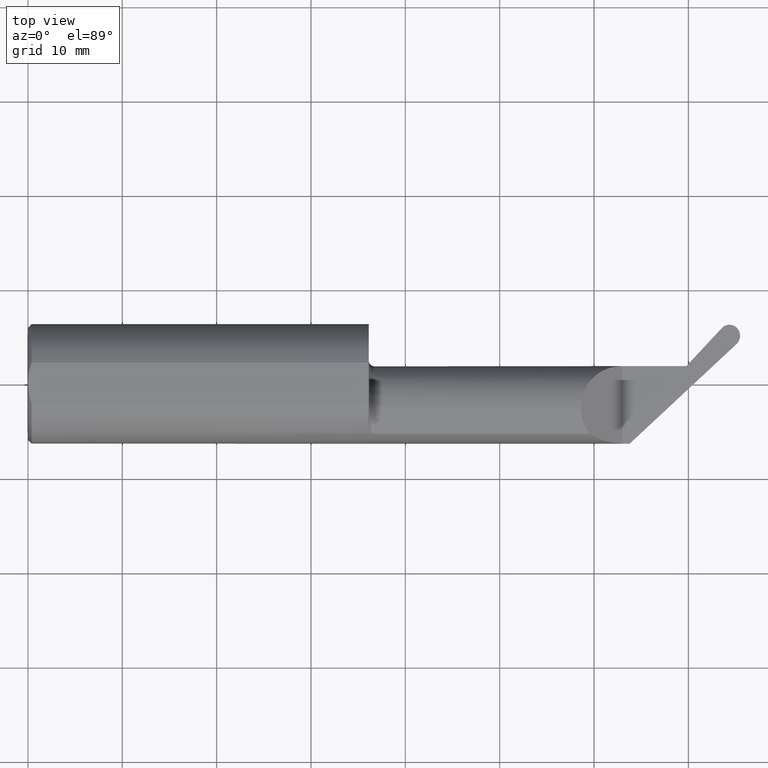
[diagram: clean part render]
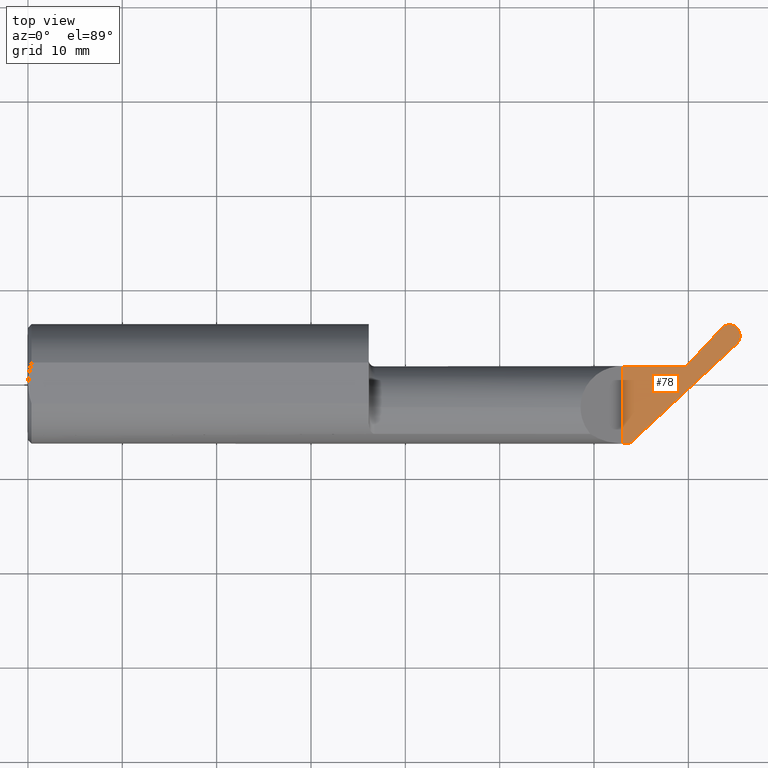
[diagram: same view with one face highlighted and labeled with its STEP entity id]
A machine part, top view. The second image highlights one B-rep face of the part: STEP entity #78.
In plain terms, the highlighted planar face has unit normal (-0, 0, -1).
Its self-contained STEP definition (entity closure, byte-faithful):
#10 = CARTESIAN_POINT ( 'NONE',  ( 2.899611671649573008, 0.2375721085925628639, -5.549066237130534971E-17 ) ) ;
#39 = LINE ( 'NONE', #489, #442 ) ;
#47 = ORIENTED_EDGE ( 'NONE', *, *, #258, .F. ) ;
#56 = FACE_OUTER_BOUND ( 'NONE', #250, .T. ) ;
#71 = CARTESIAN_POINT ( 'NONE',  ( 2.934129113859850868, 0.2470809850564593402, -5.549066237130533738E-17 ) ) ;
#73 = DIRECTION ( 'NONE',  ( -1.000000000000000000, 0.000000000000000000, 0.000000000000000000 ) ) ;
#78 = ADVANCED_FACE ( 'NONE', ( #56 ), #584, .F. ) ;
#121 = CARTESIAN_POINT ( 'NONE',  ( 2.970764410099917097, 0.2139681964820433213, -5.549066237130534971E-17 ) ) ;
#140 = ORIENTED_EDGE ( 'NONE', *, *, #492, .F. ) ;
#153 = ORIENTED_EDGE ( 'NONE', *, *, #377, .F. ) ;
#171 = CARTESIAN_POINT ( 'NONE',  ( 2.480000000000000426, 0.07414999999999932756, -5.549066237130534971E-17 ) ) ;
#179 = CARTESIAN_POINT ( 'NONE',  ( 2.921874253656272735, 0.2469210718379099834, -5.549066237130535587E-17 ) ) ;
#191 = EDGE_CURVE ( 'NONE', #414, #477, #533, .T. ) ;
#196 = CARTESIAN_POINT ( 'NONE',  ( 2.895332127941879552, 0.2329916902143778779, -5.549066237130534971E-17 ) ) ;
#204 = LINE ( 'NONE', #342, #689 ) ;
#221 = ORIENTED_EDGE ( 'NONE', *, *, #782, .T. ) ;
#243 = LINE ( 'NONE', #416, #811 ) ;
#250 = EDGE_LOOP ( 'NONE', ( #422, #221, #47, #153, #140, #501 ) ) ;
#258 = EDGE_CURVE ( 'NONE', #718, #429, #709, .T. ) ;
#285 = CARTESIAN_POINT ( 'NONE',  ( 2.895332127941879552, 0.2329916902143778779, -5.549066237130534971E-17 ) ) ;
#306 = CARTESIAN_POINT ( 'NONE',  ( 2.971947113069847823, 0.2049067688292483813, -5.549066237130536203E-17 ) ) ;
#321 = VECTOR ( 'NONE', #526, 39.37007874015748854 ) ;
#332 = DIRECTION ( 'NONE',  ( -0.000000000000000000, 0.000000000000000000, -1.000000000000000000 ) ) ;
#342 = CARTESIAN_POINT ( 'NONE',  ( 1.421999999999999931, 0.07414999999999931368, -5.549066237130534971E-17 ) ) ;
#352 = CARTESIAN_POINT ( 'NONE',  ( 2.480000000000000426, -0.2498499999999999888, -5.549066237130534971E-17 ) ) ;
#357 = DIRECTION ( 'NONE',  ( -1.000000000000000000, -0.000000000000000000, -0.000000000000000000 ) ) ;
#377 = EDGE_CURVE ( 'NONE', #585, #718, #204, .T. ) ;
#381 = CARTESIAN_POINT ( 'NONE',  ( 2.924897144155708784, 0.2472028725233045565, -5.549066237130534971E-17 ) ) ;
#389 = CARTESIAN_POINT ( 'NONE',  ( 2.963997349929906822, 0.2272759018756382587, -5.549066237130534971E-17 ) ) ;
#414 = VERTEX_POINT ( 'NONE', #725 ) ;
#416 = CARTESIAN_POINT ( 'NONE',  ( 2.480000000000000426, 0.2500000000000000000, -5.549066237130534971E-17 ) ) ;
#419 = CARTESIAN_POINT ( 'NONE',  ( 2.510656778664930311, -0.2498500000000000998, 9.070589041463373428E-17 ) ) ;
#422 = ORIENTED_EDGE ( 'NONE', *, *, #191, .F. ) ;
#429 = VERTEX_POINT ( 'NONE', #285 ) ;
#442 = VECTOR ( 'NONE', #357, 39.37007874015748143 ) ;
#449 = CARTESIAN_POINT ( 'NONE',  ( 2.965952434464781629, 0.1747368823655955639, -5.549066237130535587E-17 ) ) ;
#450 = VECTOR ( 'NONE', #771, 39.37007874015748143 ) ;
#457 = CARTESIAN_POINT ( 'NONE',  ( 2.480000000000000426, 0.2500000000000000000, -5.549066237130534971E-17 ) ) ;
#477 = VERTEX_POINT ( 'NONE', #419 ) ;
#489 = CARTESIAN_POINT ( 'NONE',  ( 3.000000000000000444, -0.2498499999999999333, -5.549066237130534971E-17 ) ) ;
#492 = EDGE_CURVE ( 'NONE', #601, #585, #243, .T. ) ;
#494 = DIRECTION ( 'NONE',  ( -0.000000000000000000, 1.000000000000000000, -0.000000000000000000 ) ) ;
#501 = ORIENTED_EDGE ( 'NONE', *, *, #548, .F. ) ;
#507 = CARTESIAN_POINT ( 'NONE',  ( 2.584952230521407213, -0.09985000000000000819, -5.549066237130534971E-17 ) ) ;
#508 = CARTESIAN_POINT ( 'NONE',  ( 2.970927185913147639, 0.1855170847982023086, -5.549066237130535587E-17 ) ) ;
#516 = CARTESIAN_POINT ( 'NONE',  ( 2.940049984817878048, 0.2457218832932256680, -5.549066237130534971E-17 ) ) ;
#526 = DIRECTION ( 'NONE',  ( -0.7313537016191662410, -0.6819983600625029174, 0.000000000000000000 ) ) ;
#531 = DIRECTION ( 'NONE',  ( 1.000000000000000000, 0.000000000000000000, 0.000000000000000000 ) ) ;
#533 = LINE ( 'NONE', #798, #321 ) ;
#548 = EDGE_CURVE ( 'NONE', #477, #601, #39, .T. ) ;
#562 = CARTESIAN_POINT ( 'NONE',  ( 2.912967813239470516, 0.2447617076851329176, -5.549066237130535587E-17 ) ) ;
#584 = PLANE ( 'NONE',  #708 ) ;
#585 = VERTEX_POINT ( 'NONE', #171 ) ;
#601 = VERTEX_POINT ( 'NONE', #352 ) ;
#628 = CARTESIAN_POINT ( 'NONE',  ( 2.951246278422101632, 0.2404503415977030933, -5.549066237130534971E-17 ) ) ;
#646 = CARTESIAN_POINT ( 'NONE',  ( 2.962147998355217915, 0.2298195036112594403, -5.549066237130536203E-17 ) ) ;
#650 = CARTESIAN_POINT ( 'NONE',  ( 2.956020981123887559, 0.2368277747149807322, -5.549066237130535587E-17 ) ) ;
#689 = VECTOR ( 'NONE', #531, 39.37007874015748143 ) ;
#708 = AXIS2_PLACEMENT_3D ( 'NONE', #457, #332, #73 ) ;
#709 = LINE ( 'NONE', #507, #450 ) ;
#718 = VERTEX_POINT ( 'NONE', #748 ) ;
#720 = CARTESIAN_POINT ( 'NONE',  ( 2.967042707307567806, 0.2220795025907459364, -5.549066237130536820E-17 ) ) ;
#723 = B_SPLINE_CURVE_WITH_KNOTS ( 'NONE', 3,
 ( #772, #449, #508, #306, #121, #720, #389, #646, #650, #628, #516, #71, #381, #179, #769, #562, #823, #10, #196 ),
 .UNSPECIFIED., .F., .F.,
 ( 4, 2, 1, 2, 2, 2, 2, 2, 2, 4 ),
 ( 0.000000000000000000, 0.2500000000000055511, 0.3750000000000080491, 0.4375000000000092704, 0.5000000000000105471, 0.6250000000000053291, 0.7500000000000001110, 0.8124999999999974465, 0.8749999999999948930, 1.000000000000000000 ),
 .UNSPECIFIED. ) ;
#725 = CARTESIAN_POINT ( 'NONE',  ( 2.956681397116279975, 0.1660746854946830720, 0.000000000000000000 ) ) ;
#748 = CARTESIAN_POINT ( 'NONE',  ( 2.747209855509363141, 0.07415000000000039615, 1.912293595564984056E-15 ) ) ;
#769 = CARTESIAN_POINT ( 'NONE',  ( 2.915937338127950085, 0.2457126107851013153, -5.549066237130536203E-17 ) ) ;
#771 = DIRECTION ( 'NONE',  ( 0.6819983600625064701, 0.7313537016191630213, 0.000000000000000000 ) ) ;
#772 = CARTESIAN_POINT ( 'NONE',  ( 2.956681397116279975, 0.1660746854946830720, 0.000000000000000000 ) ) ;
#782 = EDGE_CURVE ( 'NONE', #414, #429, #723, .T. ) ;
#798 = CARTESIAN_POINT ( 'NONE',  ( 2.510656778664930311, -0.2498500000000002108, 0.000000000000000000 ) ) ;
#811 = VECTOR ( 'NONE', #494, 39.37007874015748143 ) ;
#823 = CARTESIAN_POINT ( 'NONE',  ( 2.904555535937432431, 0.2410871652575248270, -5.549066237130533122E-17 ) ) ;